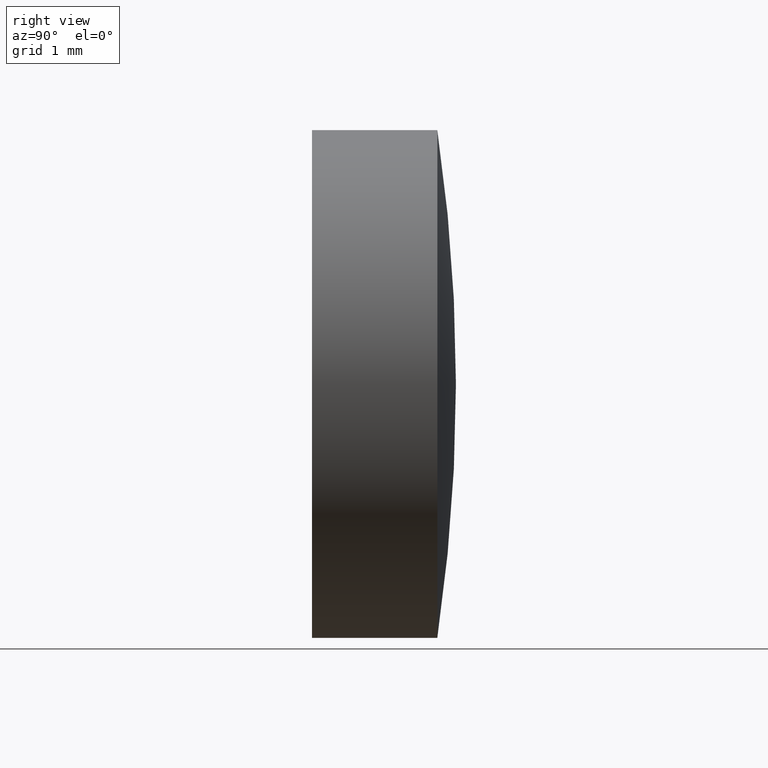
[diagram: clean part render]
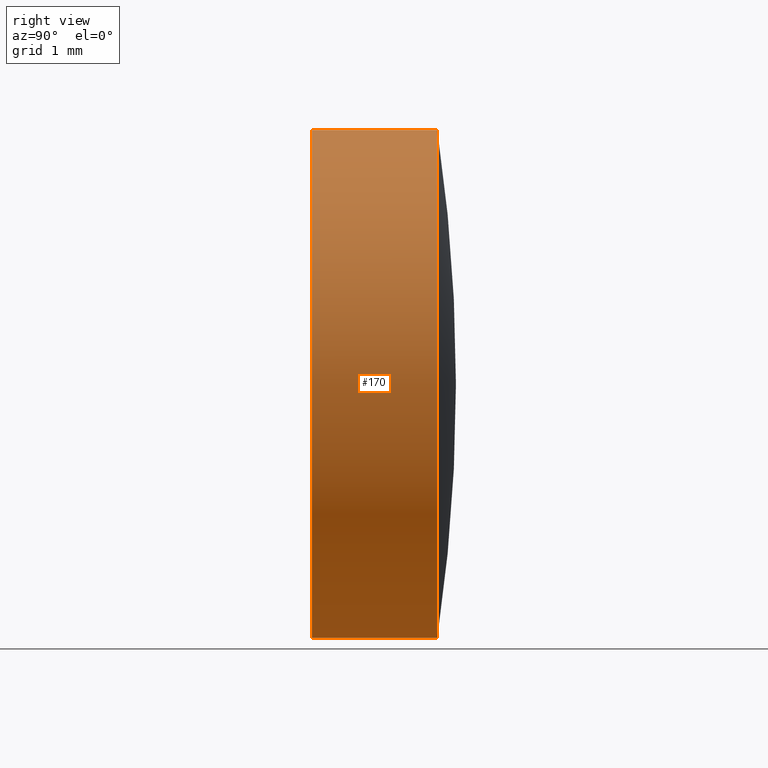
[diagram: same view with one face highlighted and labeled with its STEP entity id]
A machine part, right view. The second image highlights one B-rep face of the part: STEP entity #170.
In plain terms, the highlighted cylindrical surface (partial cylindrical patch) has radius 3 mm, axis along (-0, -1, -0).
Its self-contained STEP definition (entity closure, byte-faithful):
#2 = EDGE_CURVE ( 'NONE', #4, #166, #198, .T. ) ;
#4 = VERTEX_POINT ( 'NONE', #148 ) ;
#6 = CARTESIAN_POINT ( 'NONE',  ( -2.999999999999999556, -3.673940397442060361E-16, 3.000000000000000000 ) ) ;
#7 = CYLINDRICAL_SURFACE ( 'NONE', #141, 3.000000000000000000 ) ;
#10 = FACE_OUTER_BOUND ( 'NONE', #194, .T. ) ;
#15 = AXIS2_PLACEMENT_3D ( 'NONE', #171, #55, #103 ) ;
#24 = DIRECTION ( 'NONE',  ( -0.000000000000000000, -1.000000000000000000, -0.000000000000000000 ) ) ;
#41 = DIRECTION ( 'NONE',  ( -0.000000000000000000, -1.000000000000000000, -0.000000000000000000 ) ) ;
#45 = CARTESIAN_POINT ( 'NONE',  ( -2.999999999999999556, 0.000000000000000000, 3.000000000000000000 ) ) ;
#52 = VECTOR ( 'NONE', #64, 1000.000000000000000 ) ;
#53 = ORIENTED_EDGE ( 'NONE', *, *, #72, .F. ) ;
#54 = CARTESIAN_POINT ( 'NONE',  ( -3.000000000000000000, -3.673940397442060361E-16, -3.000000000000000000 ) ) ;
#55 = DIRECTION ( 'NONE',  ( -0.000000000000000000, -1.000000000000000000, -0.000000000000000000 ) ) ;
#64 = DIRECTION ( 'NONE',  ( -0.000000000000000000, -1.000000000000000000, -0.000000000000000000 ) ) ;
#69 = ORIENTED_EDGE ( 'NONE', *, *, #2, .F. ) ;
#72 = EDGE_CURVE ( 'NONE', #166, #146, #122, .T. ) ;
#88 = CARTESIAN_POINT ( 'NONE',  ( -2.999999999999999556, 1.479999999999999316, 3.000000000000005773 ) ) ;
#97 = EDGE_CURVE ( 'NONE', #4, #109, #196, .T. ) ;
#103 = DIRECTION ( 'NONE',  ( 0.000000000000000000, 0.000000000000000000, -1.000000000000000000 ) ) ;
#109 = VERTEX_POINT ( 'NONE', #88 ) ;
#114 = CARTESIAN_POINT ( 'NONE',  ( -3.000000000000000000, 1.479999999999999982, 0.000000000000000000 ) ) ;
#122 = CIRCLE ( 'NONE', #15, 3.000000000000000000 ) ;
#132 = DIRECTION ( 'NONE',  ( -0.000000000000000000, -1.000000000000000000, -0.000000000000000000 ) ) ;
#141 = AXIS2_PLACEMENT_3D ( 'NONE', #168, #132, #201 ) ;
#146 = VERTEX_POINT ( 'NONE', #45 ) ;
#147 = ORIENTED_EDGE ( 'NONE', *, *, #97, .T. ) ;
#148 = CARTESIAN_POINT ( 'NONE',  ( -3.000000000000000000, 1.479999999999999316, -3.000000000000005773 ) ) ;
#149 = CARTESIAN_POINT ( 'NONE',  ( -3.000000000000000000, 0.000000000000000000, -3.000000000000000000 ) ) ;
#151 = EDGE_CURVE ( 'NONE', #109, #146, #199, .T. ) ;
#153 = DIRECTION ( 'NONE',  ( 0.000000000000000000, 0.000000000000000000, -1.000000000000000000 ) ) ;
#157 = VECTOR ( 'NONE', #41, 1000.000000000000000 ) ;
#166 = VERTEX_POINT ( 'NONE', #149 ) ;
#168 = CARTESIAN_POINT ( 'NONE',  ( -3.000000000000000000, -3.673940397442060361E-16, 0.000000000000000000 ) ) ;
#170 = ADVANCED_FACE ( 'NONE', ( #10 ), #7, .T. ) ;
#171 = CARTESIAN_POINT ( 'NONE',  ( -3.000000000000000000, 0.000000000000000000, 0.000000000000000000 ) ) ;
#173 = AXIS2_PLACEMENT_3D ( 'NONE', #114, #24, #153 ) ;
#179 = ORIENTED_EDGE ( 'NONE', *, *, #151, .T. ) ;
#194 = EDGE_LOOP ( 'NONE', ( #147, #179, #53, #69 ) ) ;
#196 = CIRCLE ( 'NONE', #173, 3.000000000000000000 ) ;
#198 = LINE ( 'NONE', #54, #52 ) ;
#199 = LINE ( 'NONE', #6, #157 ) ;
#201 = DIRECTION ( 'NONE',  ( 0.000000000000000000, 0.000000000000000000, -1.000000000000000000 ) ) ;